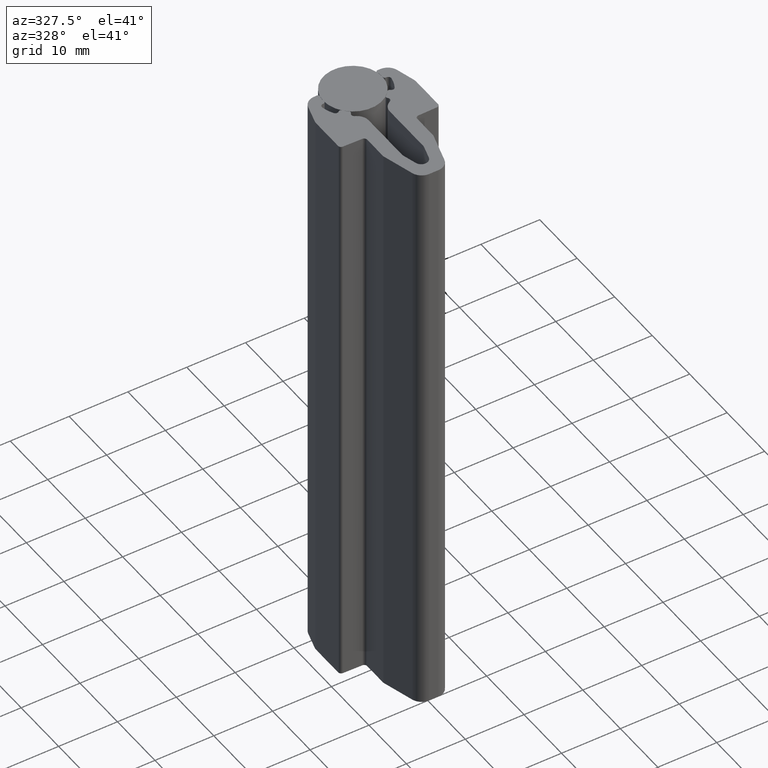
[diagram: clean part render]
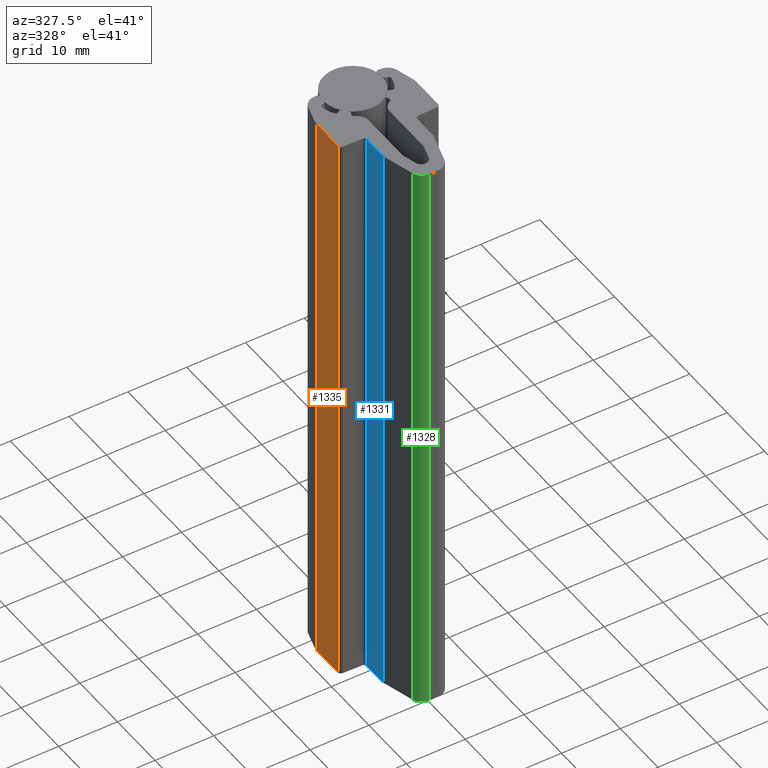
[diagram: same view with three faces highlighted in distinct colors, each labeled with its STEP entity id]
A machine part, auxiliary view with three faces highlighted in distinct colors.
Their STEP definitions:

[orange] entity #1335 — the highlighted planar face has unit normal (-1, 0, 0).
#96=FACE_OUTER_BOUND('',#164,.T.);
#164=EDGE_LOOP('',(#1033,#1034,#1035,#1036));
#207=LINE('',#2033,#317);
#269=LINE('',#2234,#379);
#270=LINE('',#2237,#380);
#271=LINE('',#2238,#381);
#317=VECTOR('',#1606,10.);
#379=VECTOR('',#1824,10.);
#380=VECTOR('',#1827,10.);
#381=VECTOR('',#1828,10.);
#534=VERTEX_POINT('',#2030);
#535=VERTEX_POINT('',#2032);
#596=VERTEX_POINT('',#2232);
#597=VERTEX_POINT('',#2236);
#662=EDGE_CURVE('',#534,#535,#207,.T.);
#763=EDGE_CURVE('',#596,#534,#269,.T.);
#764=EDGE_CURVE('',#597,#596,#270,.T.);
#765=EDGE_CURVE('',#597,#535,#271,.T.);
#1033=ORIENTED_EDGE('',*,*,#763,.F.);
#1034=ORIENTED_EDGE('',*,*,#764,.F.);
#1035=ORIENTED_EDGE('',*,*,#765,.T.);
#1036=ORIENTED_EDGE('',*,*,#662,.F.);
#1214=PLANE('',#1491);
#1335=ADVANCED_FACE('',(#96),#1214,.T.);
#1491=AXIS2_PLACEMENT_3D('',#2235,#1825,#1826);
#1606=DIRECTION('',(0.,1.,0.));
#1824=DIRECTION('',(0.,0.,-1.));
#1825=DIRECTION('center_axis',(-1.,0.,0.));
#1826=DIRECTION('ref_axis',(0.,-1.,0.));
#1827=DIRECTION('',(0.,-1.,0.));
#1828=DIRECTION('',(0.,0.,-1.));
#2030=CARTESIAN_POINT('',(-8.50000000000007,-9.4187123987242,-50.));
#2032=CARTESIAN_POINT('',(-8.50000000000007,-3.58485401155864,-50.));
#2033=CARTESIAN_POINT('',(-8.50000000000007,-9.4187123987242,-50.));
#2232=CARTESIAN_POINT('',(-8.50000000000007,-9.4187123987242,50.));
#2234=CARTESIAN_POINT('',(-8.50000000000007,-9.4187123987242,0.));
#2235=CARTESIAN_POINT('Origin',(-8.50000000000007,-3.58485401155864,0.));
#2236=CARTESIAN_POINT('',(-8.50000000000007,-3.58485401155864,50.));
#2237=CARTESIAN_POINT('',(-8.50000000000007,-9.4187123987242,50.));
#2238=CARTESIAN_POINT('',(-8.50000000000007,-3.58485401155864,0.));

[blue] entity #1331 — the highlighted planar face has unit normal (-1, 0, 0).
#92=FACE_OUTER_BOUND('',#160,.T.);
#160=EDGE_LOOP('',(#1017,#1018,#1019,#1020));
#205=LINE('',#2025,#315);
#263=LINE('',#2218,#373);
#264=LINE('',#2221,#374);
#265=LINE('',#2222,#375);
#315=VECTOR('',#1600,10.);
#373=VECTOR('',#1806,10.);
#374=VECTOR('',#1809,10.);
#375=VECTOR('',#1810,10.);
#530=VERTEX_POINT('',#2022);
#531=VERTEX_POINT('',#2024);
#592=VERTEX_POINT('',#2216);
#593=VERTEX_POINT('',#2220);
#658=EDGE_CURVE('',#530,#531,#205,.T.);
#755=EDGE_CURVE('',#592,#530,#263,.T.);
#756=EDGE_CURVE('',#593,#592,#264,.T.);
#757=EDGE_CURVE('',#593,#531,#265,.T.);
#1017=ORIENTED_EDGE('',*,*,#755,.F.);
#1018=ORIENTED_EDGE('',*,*,#756,.F.);
#1019=ORIENTED_EDGE('',*,*,#757,.T.);
#1020=ORIENTED_EDGE('',*,*,#658,.F.);
#1212=PLANE('',#1485);
#1331=ADVANCED_FACE('',(#92),#1212,.T.);
#1485=AXIS2_PLACEMENT_3D('',#2219,#1807,#1808);
#1600=DIRECTION('',(0.,1.,0.));
#1806=DIRECTION('',(0.,0.,-1.));
#1807=DIRECTION('center_axis',(-1.,0.,0.));
#1808=DIRECTION('ref_axis',(0.,-1.,0.));
#1809=DIRECTION('',(0.,-1.,0.));
#1810=DIRECTION('',(0.,0.,-1.));
#2022=CARTESIAN_POINT('',(-4.25000000000007,-14.7820697915311,-50.));
#2024=CARTESIAN_POINT('',(-4.25000000000007,-10.4892943866618,-50.));
#2025=CARTESIAN_POINT('',(-4.25000000000007,-14.7820697915311,-50.));
#2216=CARTESIAN_POINT('',(-4.25000000000007,-14.7820697915311,50.));
#2218=CARTESIAN_POINT('',(-4.25000000000007,-14.7820697915311,0.));
#2219=CARTESIAN_POINT('Origin',(-4.25000000000007,-10.4892943866618,0.));
#2220=CARTESIAN_POINT('',(-4.25000000000007,-10.4892943866618,50.));
#2221=CARTESIAN_POINT('',(-4.25000000000007,-14.7820697915311,50.));
#2222=CARTESIAN_POINT('',(-4.25000000000007,-10.4892943866618,0.));

[green] entity #1328 — the highlighted cylindrical surface (edge-blend (fillet) strip) has radius 2 mm, axis along (0, 0, 1).
#35=CYLINDRICAL_SURFACE('',#1480,2.);
#89=FACE_OUTER_BOUND('',#157,.T.);
#157=EDGE_LOOP('',(#1005,#1006,#1007,#1008));
#259=LINE('',#2206,#369);
#260=LINE('',#2210,#370);
#369=VECTOR('',#1792,10.);
#370=VECTOR('',#1797,10.);
#433=CIRCLE('',#1409,2.);
#472=CIRCLE('',#1481,2.);
#527=VERTEX_POINT('',#2016);
#528=VERTEX_POINT('',#2018);
#589=VERTEX_POINT('',#2204);
#590=VERTEX_POINT('',#2208);
#655=EDGE_CURVE('',#527,#528,#433,.T.);
#749=EDGE_CURVE('',#589,#527,#259,.T.);
#750=EDGE_CURVE('',#590,#589,#472,.T.);
#751=EDGE_CURVE('',#590,#528,#260,.T.);
#1005=ORIENTED_EDGE('',*,*,#749,.F.);
#1006=ORIENTED_EDGE('',*,*,#750,.F.);
#1007=ORIENTED_EDGE('',*,*,#751,.T.);
#1008=ORIENTED_EDGE('',*,*,#655,.F.);
#1328=ADVANCED_FACE('',(#89),#35,.T.);
#1409=AXIS2_PLACEMENT_3D('',#2019,#1595,#1596);
#1480=AXIS2_PLACEMENT_3D('',#2207,#1793,#1794);
#1481=AXIS2_PLACEMENT_3D('',#2209,#1795,#1796);
#1595=DIRECTION('center_axis',(0.,0.,-1.));
#1596=DIRECTION('ref_axis',(0.961741309549212,0.27395921869243,0.));
#1792=DIRECTION('',(0.,0.,-1.));
#1793=DIRECTION('center_axis',(0.,0.,1.));
#1794=DIRECTION('ref_axis',(0.961741309549212,0.27395921869243,0.));
#1795=DIRECTION('center_axis',(0.,0.,1.));
#1796=DIRECTION('ref_axis',(0.961741309549212,0.27395921869243,0.));
#1797=DIRECTION('',(0.,0.,-1.));
#2016=CARTESIAN_POINT('',(-0.803122740170747,-21.6100000000004,-50.));
#2018=CARTESIAN_POINT('',(-2.72660535926917,-20.1579184373852,-50.));
#2019=CARTESIAN_POINT('Origin',(-0.803122740170747,-19.6100000000004,-50.));
#2204=CARTESIAN_POINT('',(-0.803122740170747,-21.6100000000004,50.));
#2206=CARTESIAN_POINT('',(-0.803122740170747,-21.6100000000004,0.));
#2207=CARTESIAN_POINT('Origin',(-0.803122740170747,-19.6100000000004,0.));
#2208=CARTESIAN_POINT('',(-2.72660535926917,-20.1579184373852,50.));
#2209=CARTESIAN_POINT('Origin',(-0.803122740170747,-19.6100000000004,50.));
#2210=CARTESIAN_POINT('',(-2.72660535926917,-20.1579184373852,0.));